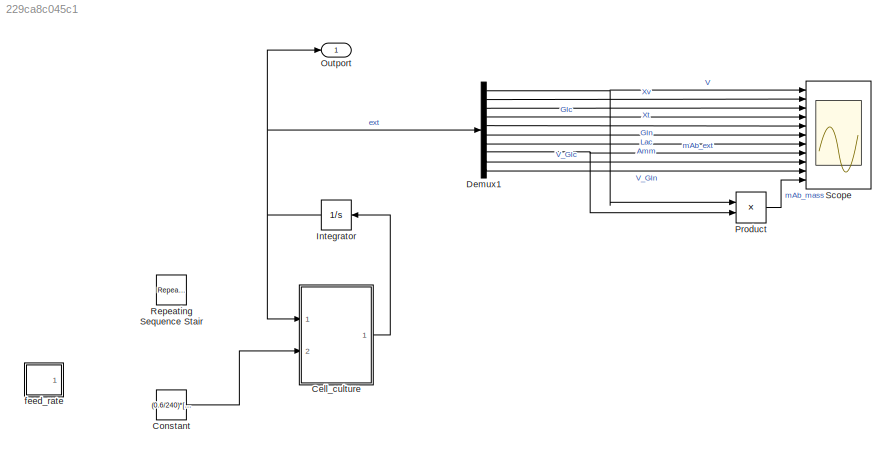
MODEL slx_229ca8c045c1
KIND model
CONFIG AbsTol = auto
CONFIG EnableMultiTasking = off
CONFIG FixedStep = auto
CONFIG MaxStep = auto
CONFIG MinStep = auto
CONFIG RelTol = 1e-3
CONFIG SampleTimeConstraint = Unconstrained
CONFIG SolverName = VariableStepAuto
CONFIG StartTime = 0.0
CONFIG StopTime = 240
WORKSPACE source: mxarray member
WORKSPACE Q_in = [0.12271780758 0.123470790595 0.124228393831 0.124990645638 0.125757574538 0.12652920923 0.127305578587]
WORKSPACE Sig: Simulink.Signal (value not decoded)
WORKSPACE x0 = [0.2 200000000 200000000 25.1 5.01 0 0 100 0 0 0 0 ... (16 elements, 16x1)]
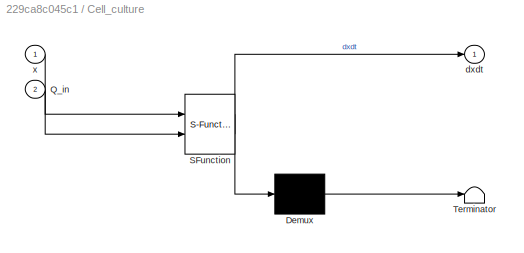
BLOCK [SubSystem] Cell_culture
  ErrorFcn = Stateflow.Translate.translate
  PermitHierarchicalResolution = ExplicitOnly
  Ports = [2, 1]
  RequestExecContextInheritance = off
  SFBlockType = MATLAB Function
  TreatAsAtomicUnit = on
BLOCK [Demux] Cell_culture/ Demux 
  Outputs = 1
  Ports = [1, 1]
BLOCK [S-Function] Cell_culture/ SFunction 
  EnableBusSupport = on
  FunctionName = sf_sfun
  PortCounts = [2 2]
  Ports = [2, 2]
  SFcnIsStateOwnerBlock = off
  SFunctionDeploymentMode = off
  Tag = Stateflow S-Function 3
BLOCK [Terminator] Cell_culture/ Terminator 
BLOCK [Inport] Cell_culture/Q_in
  Port = 2
BLOCK [Outport] Cell_culture/dxdt
  VectorParamsAs1DForOutWhenUnconnected = off
BLOCK [Inport] Cell_culture/x
BLOCK [Constant] Constant
  Value = (0.6/240)*[1;1]
BLOCK [Demux] Demux1
  Outputs = 10
  Ports = [1, 10]
BLOCK [Integrator] Integrator
  InitialCondition = [0.8;2E+8;2E+8;25;4;0;0;0;0;0]
  LimitOutput = on
  LowerSaturationLimit = 0
  Ports = [1, 1]
BLOCK [Outport] Outport
  SampleTime = 12
BLOCK [Product] Product
  Ports = [2, 1]
BLOCK [Reference] Repeating Sequence Stair  REF=simulink/Sources/Repeating
Sequence
Stair
  Ports = [0, 1]
  SourceBlock = simulink/Sources/Repeating\nSequence\nStair
  SourceProductBaseCode = SL
  SourceType = Repeating Sequence Stair
BLOCK [Scope] Scope
  Floating = off
  NumInputPorts = 11
  Ports = [11]
  ScopeSpecificationString = Simulink.scopes.TimeScopeBlockCfg('CurrentConfiguration', extmgr.ConfigurationSet(extmgr.Configuration('Core','General UI',true),extmgr.Configuration('Core','Source UI',true),extmgr.Configuration('Sources','WiredSimulink',true,'DataLoggingVariableName','ScopeData1'),extmgr.Configuration('Visuals','Time Domain',true,'SerializedDisplays',{struct('MinYLimReal','0.65','MaxYLimReal','2.15','YLabelReal'...<+10615ch>
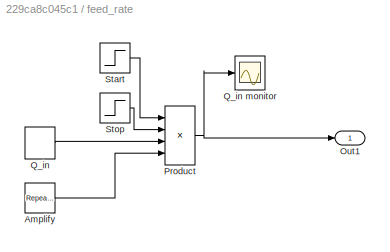
BLOCK [SubSystem] feed_rate
  Ports = [0, 1]
  RequestExecContextInheritance = off
BLOCK [Reference] feed_rate/Amplify  REF=simulink/Sources/Repeating
Sequence
Stair
  Ports = [0, 1]
  SourceBlock = simulink/Sources/Repeating\nSequence\nStair
  SourceProductBaseCode = SL
  SourceType = Repeating Sequence Stair
BLOCK [Outport] feed_rate/Out1
BLOCK [Product] feed_rate/Product
  Inputs = 4
  Ports = [4, 1]
BLOCK [DiscretePulseGenerator] feed_rate/Q_in
  Period = 24
  PhaseDelay = 12
  Ports = [0, 1]
  PulseType = Time based
  PulseWidth = 1/24
BLOCK [Scope] feed_rate/Q_in monitor
  Floating = off
  NumInputPorts = 1
  Ports = [1]
  ScopeSpecificationString = Simulink.scopes.TimeScopeBlockCfg('CurrentConfiguration', extmgr.ConfigurationSet(extmgr.Configuration('Core','General UI',true),extmgr.Configuration('Core','Source UI',true),extmgr.Configuration('Sources','WiredSimulink',true,'DataLoggingVariableName','ScopeData1'),extmgr.Configuration('Visuals','Time Domain',true,'SerializedDisplays',{struct('MinYLimReal','-0.00079','MaxYLimReal','0.00707','YLab...<+1471ch>
BLOCK [Step] feed_rate/Start
  SampleTime = 0
BLOCK [Step] feed_rate/Stop
  After = 0
  Before = 1
  SampleTime = 0
  Time = 169
LINE Cell_culture:1 -> Integrator:1
LINE Constant:1 -> Cell_culture:2
NET Demux1:1 -> Product:1, Scope:1
LINE Demux1:10 -> Scope:10
LINE Demux1:2 -> Scope:2
LINE Demux1:3 -> Scope:3
LINE Demux1:4 -> Scope:4
LINE Demux1:5 -> Scope:5
LINE Demux1:6 -> Scope:6
LINE Demux1:7 -> Scope:7
NET Demux1:8 -> Product:2, Scope:8
LINE Demux1:9 -> Scope:9
NET Integrator:1 -> Cell_culture:1, Demux1:1, Outport:1
LINE Product:1 -> Scope:11
LINE feed_rate/Amplify:1 -> feed_rate/Product:4
NET feed_rate/Product:1 -> feed_rate/Out1:1, feed_rate/Q_in monitor:1
LINE feed_rate/Q_in:1 -> feed_rate/Product:3
LINE feed_rate/Start:1 -> feed_rate/Product:1
LINE feed_rate/Stop:1 -> feed_rate/Product:2
note: NET lines group one-source signal fan-out (src -> all destinations, sorted); 1:1 wires keep LINE
CHART Cell_culture states=1 transitions=1
  STATE_LABEL 'eML_blk_kernel()'
  STATE_LABEL 'SCRIPT:\nfunction dxdt = fcn(x,Q_in)\ndxdt = deTremblay1992MFStateFcn(x,Q_in);\nend'
CHART  states=0 transitions=0
